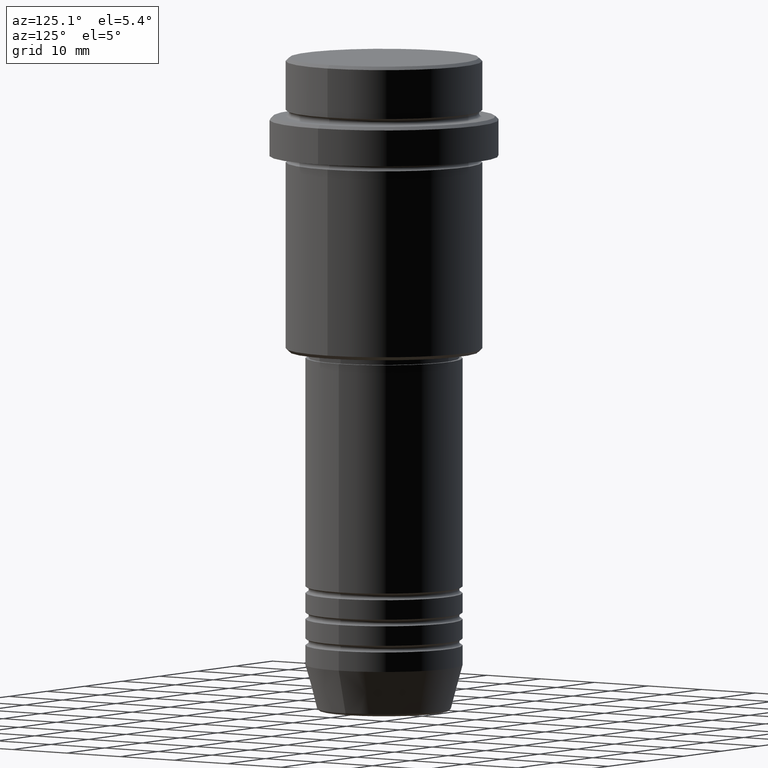
[diagram: clean part render]
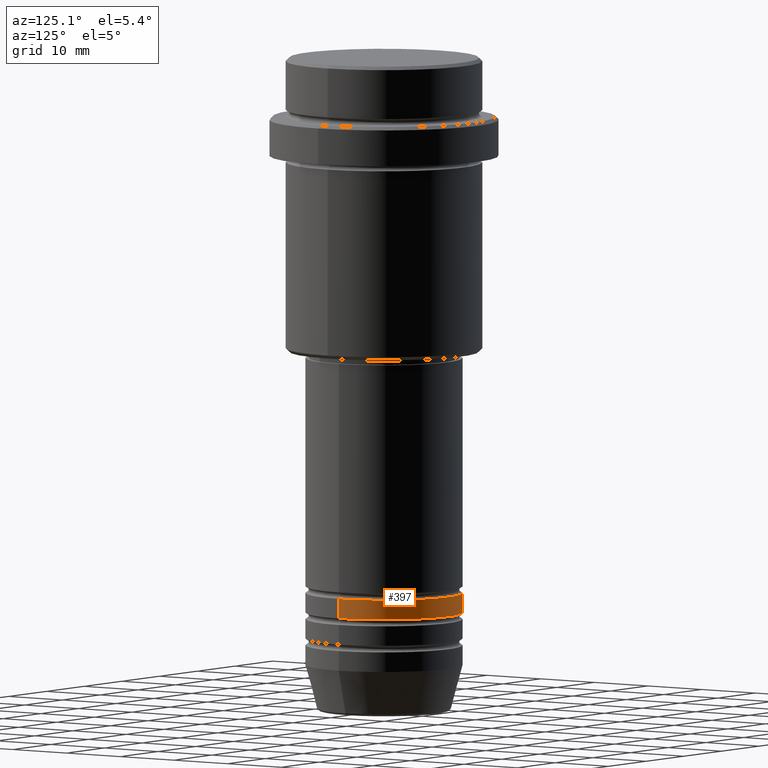
[diagram: same view with one face highlighted and labeled with its STEP entity id]
A machine part, auxiliary view. The second image highlights one B-rep face of the part: STEP entity #397.
In plain terms, the highlighted cylindrical surface (partial cylindrical patch) has radius 12 mm, axis along (-0, -0, 1).
Its self-contained STEP definition (entity closure, byte-faithful):
#7 = CYLINDRICAL_SURFACE ( 'NONE', #1175, 12.00000000000000000 ) ;
#15 = DIRECTION ( 'NONE',  ( 1.000000000000000000, 0.000000000000000000, 0.000000000000000000 ) ) ;
#24 = CARTESIAN_POINT ( 'NONE',  ( -12.00000000000000000, 1.469576158976823947E-15, -84.99999999999988631 ) ) ;
#123 = LINE ( 'NONE', #988, #853 ) ;
#145 = CARTESIAN_POINT ( 'NONE',  ( 0.000000000000000000, 0.000000000000000000, 0.000000000000000000 ) ) ;
#163 = CARTESIAN_POINT ( 'NONE',  ( 12.00000000000000000, 0.000000000000000000, -84.99999999999988631 ) ) ;
#211 = VERTEX_POINT ( 'NONE', #24 ) ;
#235 = VERTEX_POINT ( 'NONE', #163 ) ;
#239 = CIRCLE ( 'NONE', #926, 12.00000000000000000 ) ;
#264 = CARTESIAN_POINT ( 'NONE',  ( -12.00000000000000000, 1.469576158976823947E-15, -81.99999999999987210 ) ) ;
#295 = CARTESIAN_POINT ( 'NONE',  ( 12.00000000000000000, 0.000000000000000000, 0.000000000000000000 ) ) ;
#346 = CARTESIAN_POINT ( 'NONE',  ( 0.000000000000000000, 0.000000000000000000, -81.99999999999987210 ) ) ;
#397 = ADVANCED_FACE ( 'NONE', ( #1116 ), #7, .T. ) ;
#428 = ORIENTED_EDGE ( 'NONE', *, *, #596, .T. ) ;
#438 = DIRECTION ( 'NONE',  ( -0.000000000000000000, -0.000000000000000000, 1.000000000000000000 ) ) ;
#440 = DIRECTION ( 'NONE',  ( -0.000000000000000000, -0.000000000000000000, 1.000000000000000000 ) ) ;
#451 = ORIENTED_EDGE ( 'NONE', *, *, #452, .F. ) ;
#452 = EDGE_CURVE ( 'NONE', #937, #987, #1106, .T. ) ;
#495 = DIRECTION ( 'NONE',  ( 1.000000000000000000, 0.000000000000000000, 0.000000000000000000 ) ) ;
#550 = AXIS2_PLACEMENT_3D ( 'NONE', #346, #1001, #15 ) ;
#596 = EDGE_CURVE ( 'NONE', #235, #211, #239, .T. ) ;
#616 = DIRECTION ( 'NONE',  ( -0.000000000000000000, -0.000000000000000000, 1.000000000000000000 ) ) ;
#635 = ORIENTED_EDGE ( 'NONE', *, *, #654, .F. ) ;
#654 = EDGE_CURVE ( 'NONE', #235, #937, #854, .T. ) ;
#750 = VECTOR ( 'NONE', #616, 1000.000000000000000 ) ;
#767 = DIRECTION ( 'NONE',  ( 1.000000000000000000, 0.000000000000000000, 0.000000000000000000 ) ) ;
#853 = VECTOR ( 'NONE', #438, 1000.000000000000000 ) ;
#854 = LINE ( 'NONE', #295, #750 ) ;
#926 = AXIS2_PLACEMENT_3D ( 'NONE', #1128, #1356, #495 ) ;
#937 = VERTEX_POINT ( 'NONE', #1115 ) ;
#987 = VERTEX_POINT ( 'NONE', #264 ) ;
#988 = CARTESIAN_POINT ( 'NONE',  ( -12.00000000000000000, 1.469576158976823947E-15, 0.000000000000000000 ) ) ;
#1001 = DIRECTION ( 'NONE',  ( -0.000000000000000000, -0.000000000000000000, 1.000000000000000000 ) ) ;
#1017 = EDGE_LOOP ( 'NONE', ( #428, #1293, #451, #635 ) ) ;
#1106 = CIRCLE ( 'NONE', #550, 12.00000000000000000 ) ;
#1115 = CARTESIAN_POINT ( 'NONE',  ( 12.00000000000000000, 0.000000000000000000, -81.99999999999987210 ) ) ;
#1116 = FACE_OUTER_BOUND ( 'NONE', #1017, .T. ) ;
#1128 = CARTESIAN_POINT ( 'NONE',  ( 0.000000000000000000, 0.000000000000000000, -84.99999999999988631 ) ) ;
#1175 = AXIS2_PLACEMENT_3D ( 'NONE', #145, #440, #767 ) ;
#1293 = ORIENTED_EDGE ( 'NONE', *, *, #1303, .T. ) ;
#1303 = EDGE_CURVE ( 'NONE', #211, #987, #123, .T. ) ;
#1356 = DIRECTION ( 'NONE',  ( -0.000000000000000000, -0.000000000000000000, 1.000000000000000000 ) ) ;